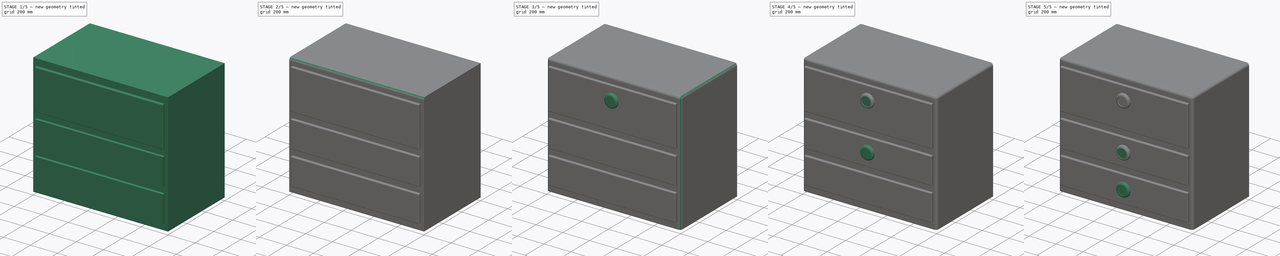
[diagram: build sequence overview — one tinted view per stage of 5, left to right]
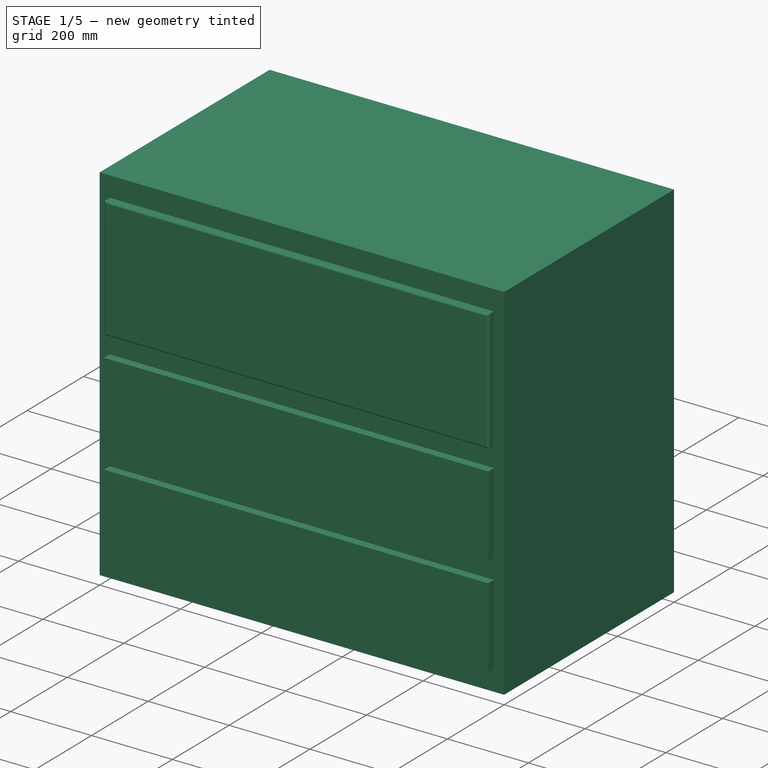
[diagram: stage 1 of 5 — iso view after this stage's code; geometry added in this stage tinted green]
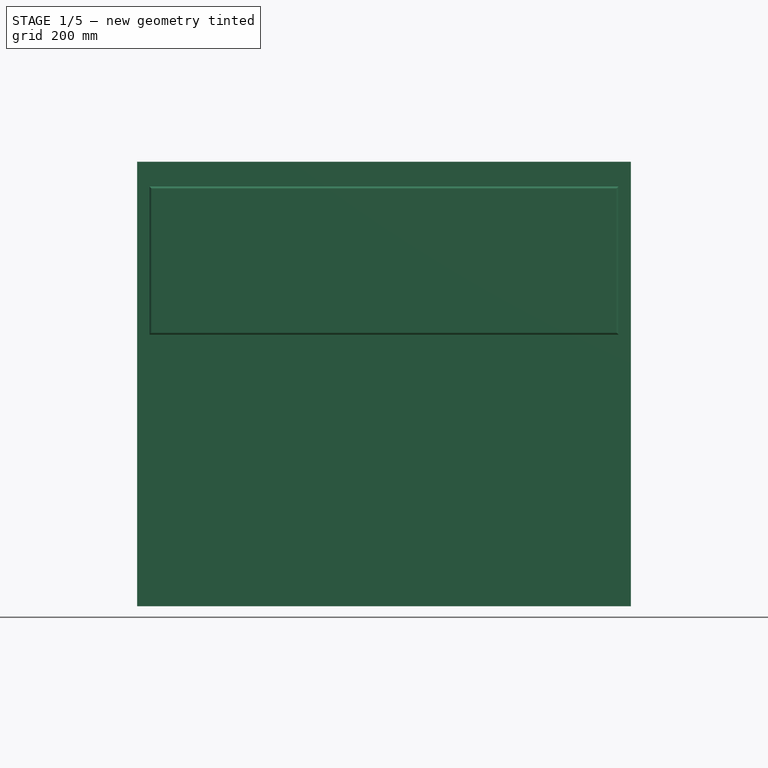
[diagram: stage 1 of 5 — front view after this stage's code; geometry added in this stage tinted green]
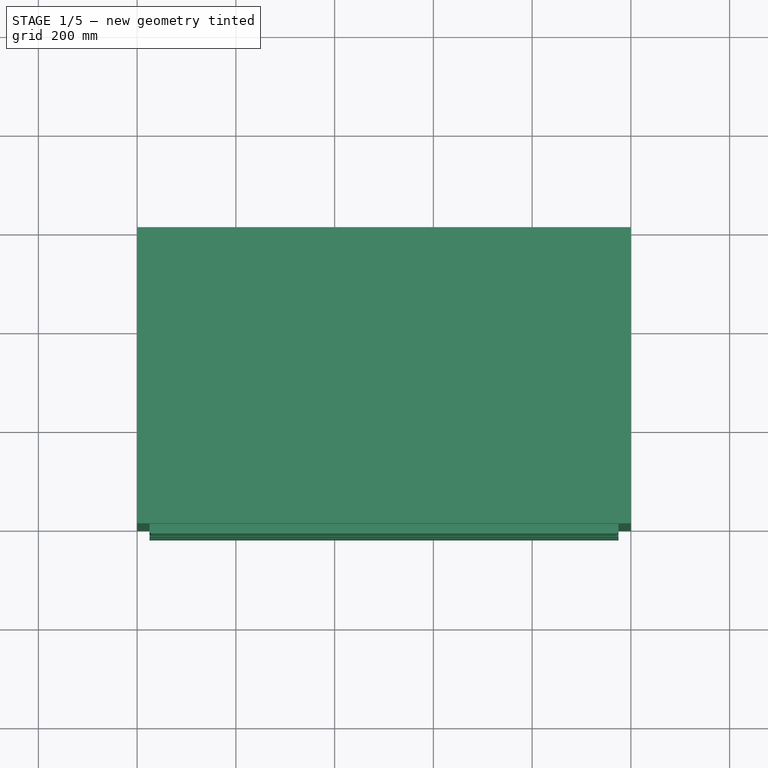
[diagram: stage 1 of 5 — top view after this stage's code; geometry added in this stage tinted green]
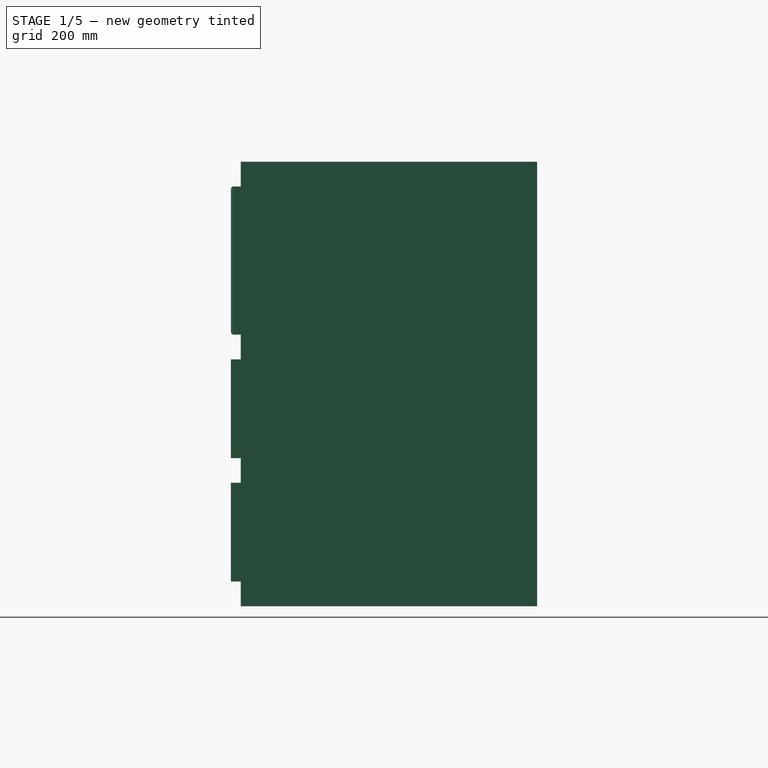
[diagram: stage 1 of 5 — right view after this stage's code; geometry added in this stage tinted green]
FCSTD DOCUMENT  (FreeCAD 0.18R16131 (Git))
Label: GenericDrawers_1000x600x900mm
License: All rights reserved
LicenseURL: http://en.wikipedia.org/wiki/All_rights_reserved
objects: PartDesign::Fillet×9, Sketcher::SketchObject×6, PartDesign::Pad×5, PartDesign::Pocket×4, PartDesign::Body×1
note: 34 computed .brp shape members not serialized (recipe doc carries the construction recipe); baked Part::Feature solids carry a one-line shape summary decoded from their .brp

FEATURE [Sketcher::SketchObject] Sketch
  MapMode = 5
  Support = -> [XY_Plane]
  sketch-geometry (4):
    g0: LineSegment StartX=0 StartY=0 StartZ=0 EndX=1000 EndY=0 EndZ=0
    g1: LineSegment StartX=1000 StartY=0 StartZ=0 EndX=1000 EndY=600 EndZ=0
    g2: LineSegment StartX=1000 StartY=600 StartZ=0 EndX=0 EndY=600 EndZ=0
    g3: LineSegment StartX=0 StartY=600 StartZ=0 EndX=0 EndY=0 EndZ=0
  constraints (11):
    c: Coincident(g0,g1)
    c: Coincident(g1,g2)
    c: Coincident(g2,g3)
    c: Coincident(g3,g0)
    c: Horizontal(g0)
    c: Horizontal(g2)
    c: Vertical(g1)
    c: Vertical(g3)
    c: Coincident(g0,g-1)
    c: DistanceX(g2,g2) = 1000
    c: DistanceY(g3,g3) = 600
FEATURE [PartDesign::Pad] Pad
  Length = 900
  Length2 = 100
  Profile = -> Sketch
  Type = 0
FEATURE [Sketcher::SketchObject] Sketch001
  MapMode = 5
  Placement = pos=(0,600,0) rot=(0,0.707107,0.707107;3.14159rad)
  Support = -> [Pad]
  sketch-geometry (4):
    g0: LineSegment StartX=-975 StartY=875 StartZ=0 EndX=-25 EndY=875 EndZ=0
    g1: LineSegment StartX=-25 StartY=875 StartZ=0 EndX=-25 EndY=25 EndZ=0
    g2: LineSegment StartX=-25 StartY=25 StartZ=0 EndX=-975 EndY=25 EndZ=0
    g3: LineSegment StartX=-975 StartY=25 StartZ=0 EndX=-975 EndY=875 EndZ=0
  constraints (12):
    c: Coincident(g0,g1)
    c: Coincident(g1,g2)
    c: Coincident(g2,g3)
    c: Coincident(g3,g0)
    c: Horizontal(g0)
    c: Horizontal(g2)
    c: Vertical(g1)
    c: Vertical(g3)
    c: DistanceY(g1,g1) = 850
    c: DistanceX(g2,g2) = 950
    c: DistanceX(g1) = -25
    c: DistanceY(g1) = 25
FEATURE [PartDesign::Pocket] Pocket
  BaseFeature = -> Pad
  Length = 25
  Length2 = 100
  Profile = -> Sketch001
  Type = 0
FEATURE [Sketcher::SketchObject] Sketch002
  MapMode = 5
  Placement = pos=(0,0,0) rot=(1,0,0;1.5708rad)
  Support = -> [Pocket]
  sketch-geometry (12):
    g0: LineSegment StartX=25 StartY=50 StartZ=0 EndX=975 EndY=50 EndZ=0
    g1: LineSegment StartX=975 StartY=50 StartZ=0 EndX=975 EndY=250 EndZ=0
    g2: LineSegment StartX=975 StartY=250 StartZ=0 EndX=25 EndY=250 EndZ=0
    g3: LineSegment StartX=25 StartY=250 StartZ=0 EndX=25 EndY=50 EndZ=0
    g4: LineSegment StartX=25 StartY=500 StartZ=0 EndX=975 EndY=500 EndZ=0
    g5: LineSegment StartX=975 StartY=500 StartZ=0 EndX=975 EndY=300 EndZ=0
    g6: LineSegment StartX=975 StartY=300 StartZ=0 EndX=25 EndY=300 EndZ=0
    g7: LineSegment StartX=25 StartY=300 StartZ=0 EndX=25 EndY=500 EndZ=0
    g8: LineSegment StartX=25 StartY=850 StartZ=0 EndX=975 EndY=850 EndZ=0
    g9: LineSegment StartX=975 StartY=850 StartZ=0 EndX=975 EndY=550 EndZ=0
    g10: LineSegment StartX=975 StartY=550 StartZ=0 EndX=25 EndY=550 EndZ=0
    g11: LineSegment StartX=25 StartY=550 StartZ=0 EndX=25 EndY=850 EndZ=0
  constraints (36):
    c: Coincident(g0,g1)
    c: Coincident(g1,g2)
    c: Coincident(g2,g3)
    c: Coincident(g3,g0)
    c: Horizontal(g0)
    c: Horizontal(g2)
    c: Vertical(g1)
    c: Vertical(g3)
    c: DistanceX(g0,g0) = 950
    c: DistanceY(g3,g3) = 200
    c: DistanceY(g0) = 50
    c: DistanceX(g0) = 25
    c: Coincident(g4,g5)
    c: Coincident(g5,g6)
    c: Coincident(g6,g7)
    c: Coincident(g7,g4)
    c: Horizontal(g4)
    c: Horizontal(g6)
    c: Vertical(g5)
    c: Vertical(g7)
    c: DistanceY(g5,g5) = 200
    c: DistanceX(g4,g4) = 950
    c: DistanceX(g6) = 25
    c: DistanceY(g6) = 300
    c: Coincident(g8,g9)
    c: Coincident(g9,g10)
    c: Coincident(g10,g11)
    c: Coincident(g11,g8)
    c: Horizontal(g8)
    c: Horizontal(g10)
    c: Vertical(g9)
    c: Vertical(g11)
    c: DistanceY(g9,g9) = 300
    c: DistanceX(g8,g8) = 950
    c: DistanceX(g10) = 25
    c: DistanceY(g10) = 550
FEATURE [PartDesign::Pad] Pad001
  BaseFeature = -> Pocket
  Length = 20
  Length2 = 100
  Profile = -> Sketch002
  Type = 0
FEATURE [PartDesign::Fillet] Fillet
  Base = -> Pad001 [Face21]
  BaseFeature = -> Pad001
  Radius = 5
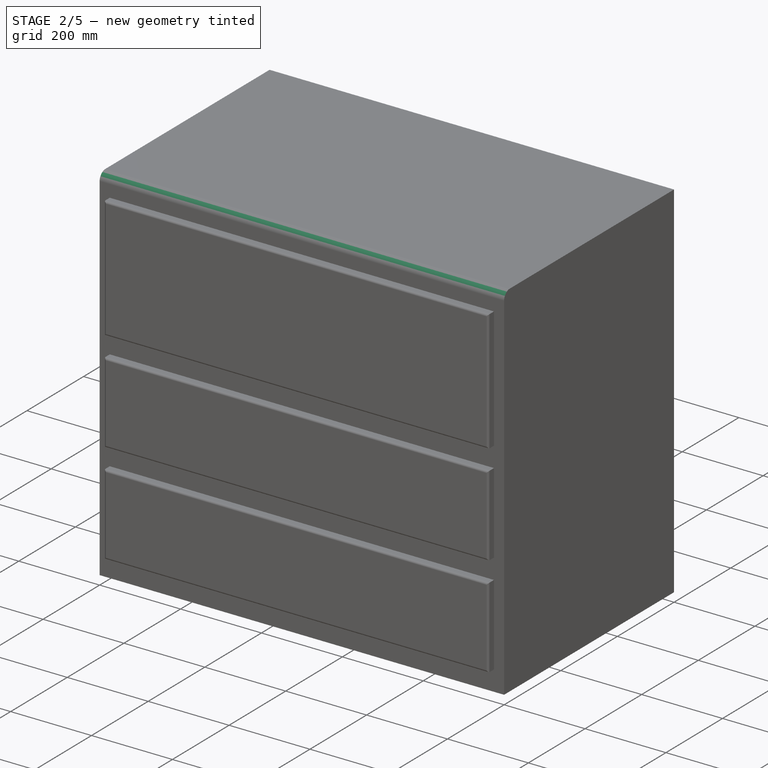
[diagram: stage 2 of 5 — iso view after this stage's code; geometry added in this stage tinted green]
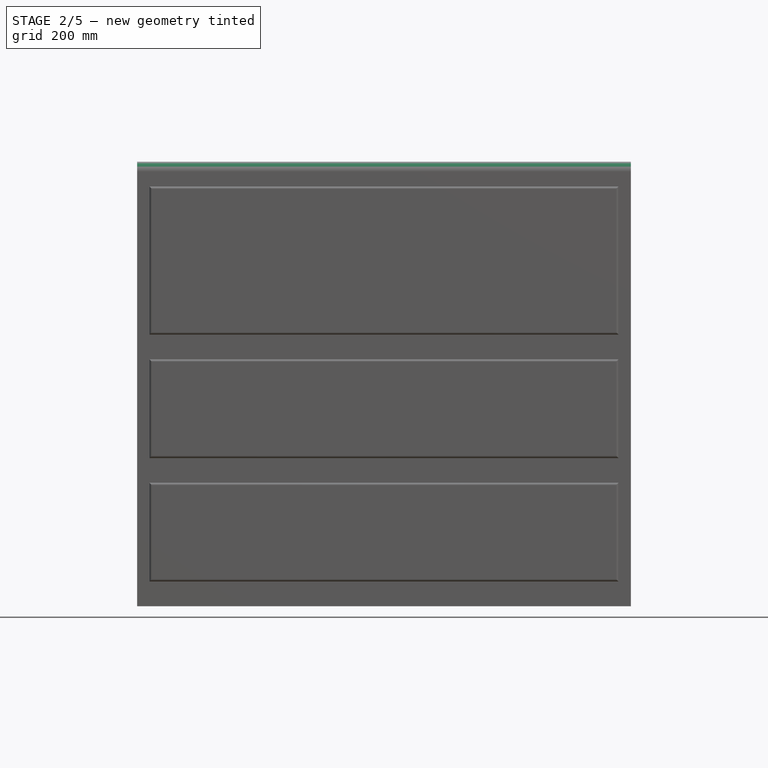
[diagram: stage 2 of 5 — front view after this stage's code; geometry added in this stage tinted green]
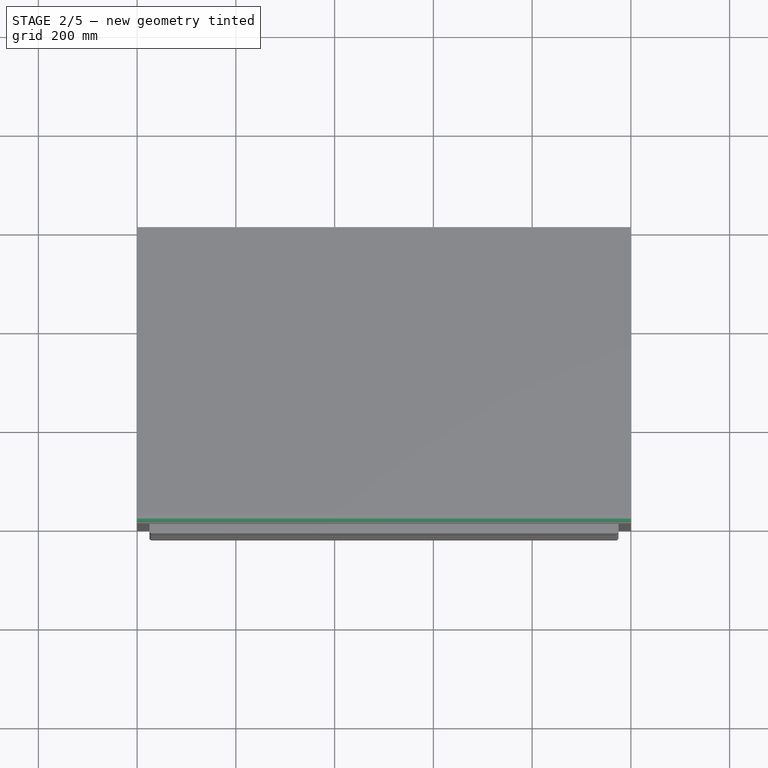
[diagram: stage 2 of 5 — top view after this stage's code; geometry added in this stage tinted green]
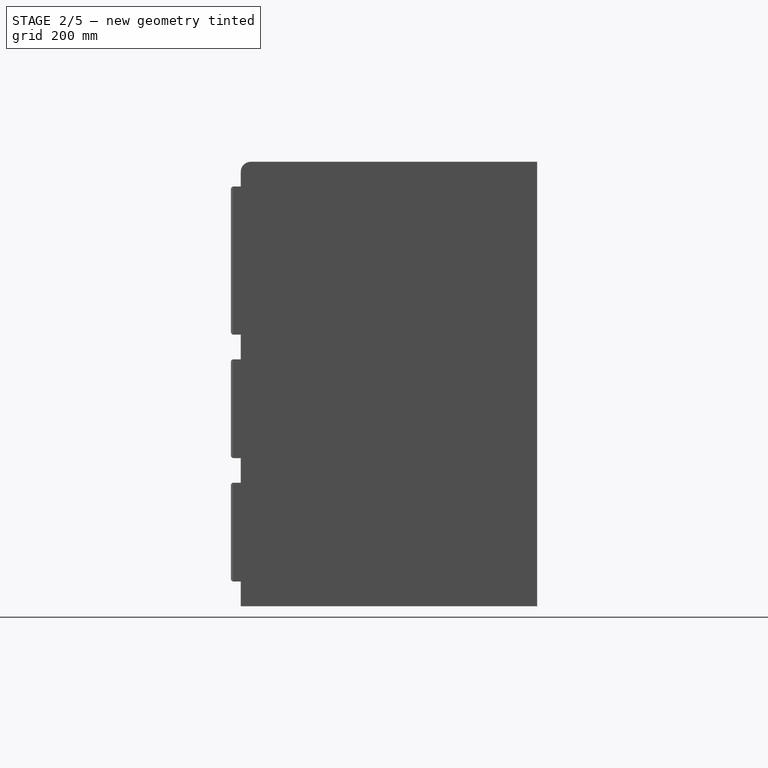
[diagram: stage 2 of 5 — right view after this stage's code; geometry added in this stage tinted green]
FEATURE [PartDesign::Fillet] Fillet001
  Base = -> Fillet [Face25]
  BaseFeature = -> Fillet
  Radius = 5
FEATURE [PartDesign::Fillet] Fillet002
  Base = -> Fillet001 [Face24]
  BaseFeature = -> Fillet001
  Radius = 5
FEATURE [PartDesign::Fillet] Fillet003
  Base = -> Fillet002 [Edge13]
  BaseFeature = -> Fillet002
  Radius = 20
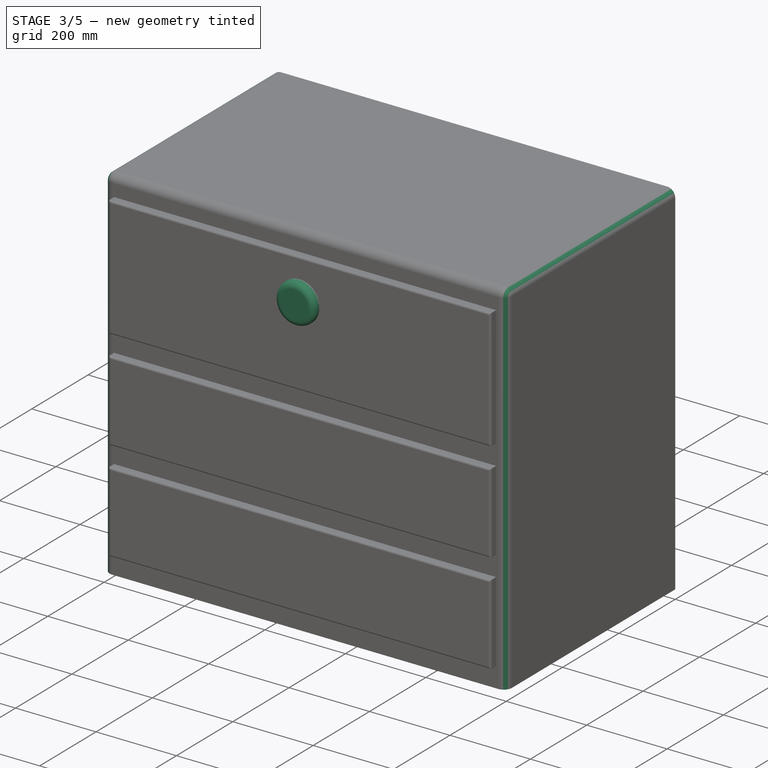
[diagram: stage 3 of 5 — iso view after this stage's code; geometry added in this stage tinted green]
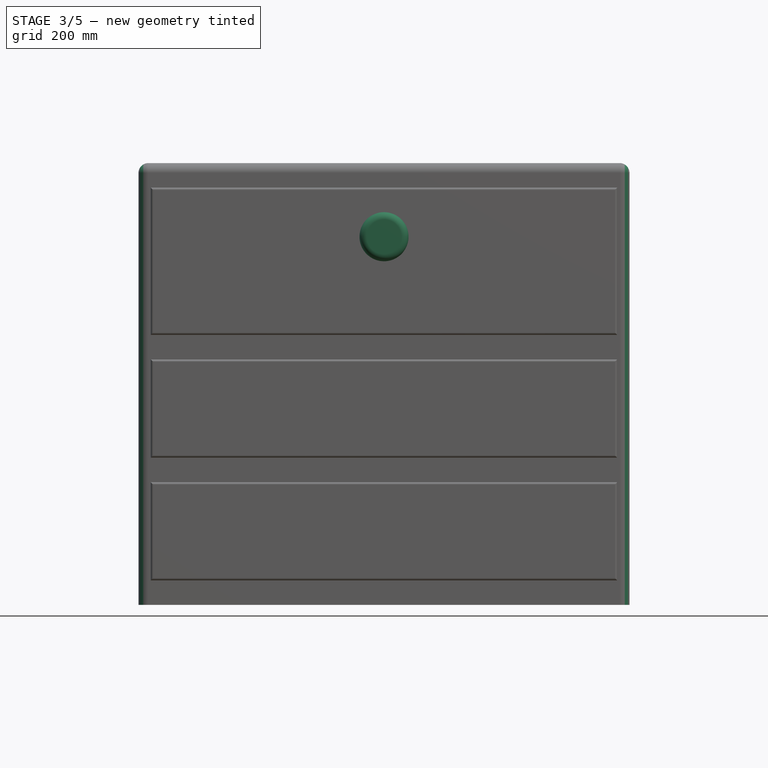
[diagram: stage 3 of 5 — front view after this stage's code; geometry added in this stage tinted green]
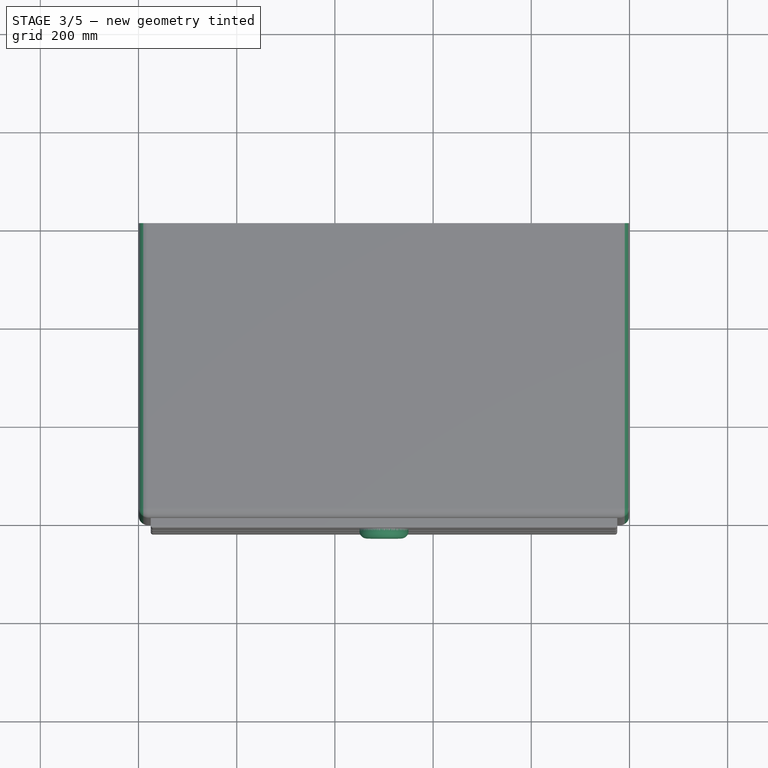
[diagram: stage 3 of 5 — top view after this stage's code; geometry added in this stage tinted green]
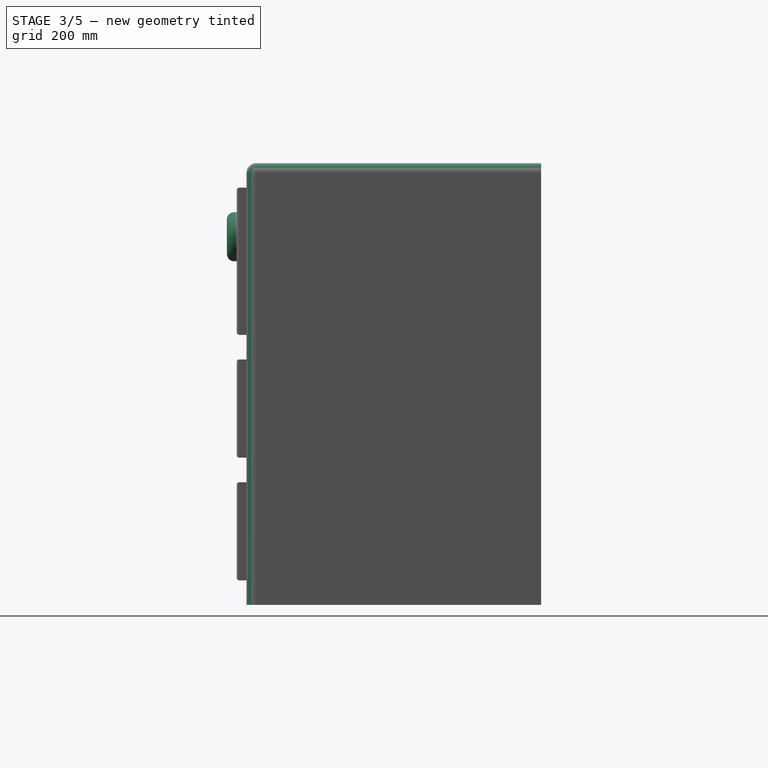
[diagram: stage 3 of 5 — right view after this stage's code; geometry added in this stage tinted green]
FEATURE [PartDesign::Fillet] Fillet004
  Base = -> Fillet003 [Edge19]
  BaseFeature = -> Fillet003
  Radius = 20
FEATURE [PartDesign::Fillet] Fillet005
  Base = -> Fillet004 [Edge24]
  BaseFeature = -> Fillet004
  Radius = 20
FEATURE [Sketcher::SketchObject] Sketch003
  MapMode = 5
  Placement = pos=(0,-20,4.4e-15) rot=(1,0,0;1.5708rad)
  Support = -> [Fillet005]
  sketch-geometry (1):
    g0: Circle CenterX=500 CenterY=750 CenterZ=0 NormalX=0 NormalY=0 NormalZ=1 AngleXU=0 Radius=50
  constraints (3):
    c: Radius(g0) = 50
    c: DistanceX(g0) = 500
    c: DistanceY(g0) = 750
FEATURE [PartDesign::Pad] Pad002
  BaseFeature = -> Fillet005
  Length = 20
  Length2 = 100
  Profile = -> Sketch003
  Type = 0
FEATURE [PartDesign::Fillet] Fillet006
  Base = -> Pad002 [Face47]
  BaseFeature = -> Pad002
  Radius = 15
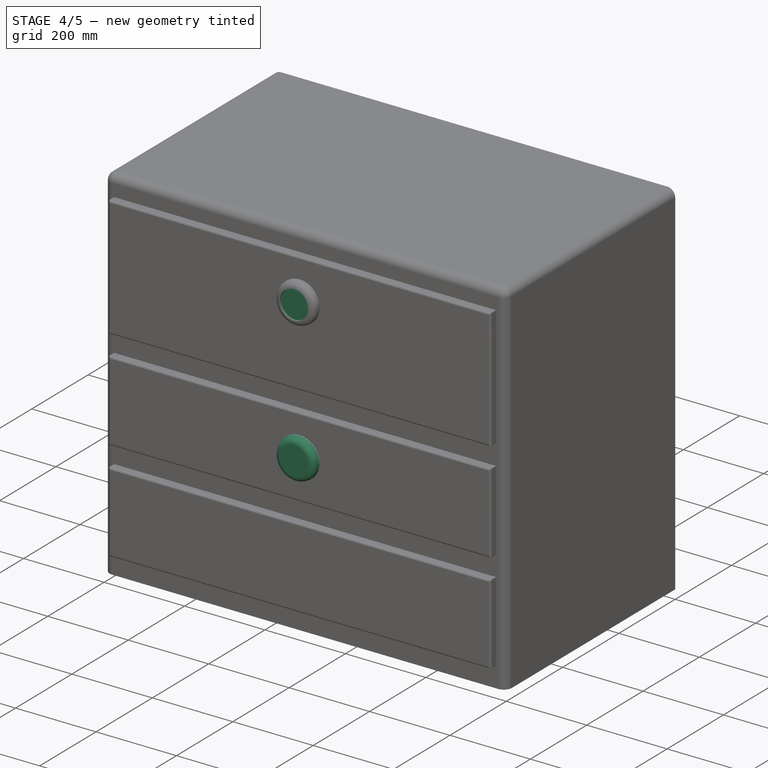
[diagram: stage 4 of 5 — iso view after this stage's code; geometry added in this stage tinted green]
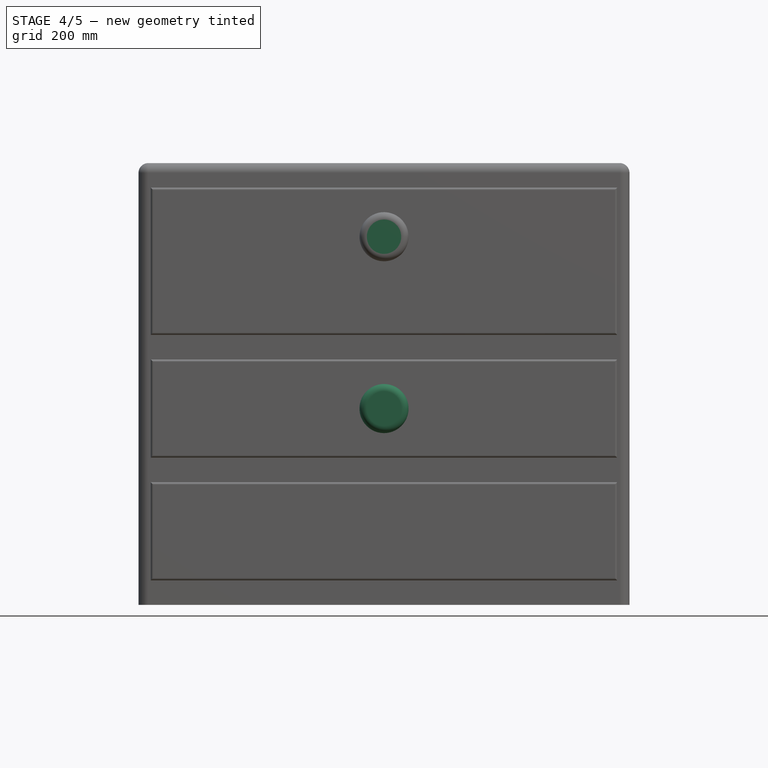
[diagram: stage 4 of 5 — front view after this stage's code; geometry added in this stage tinted green]
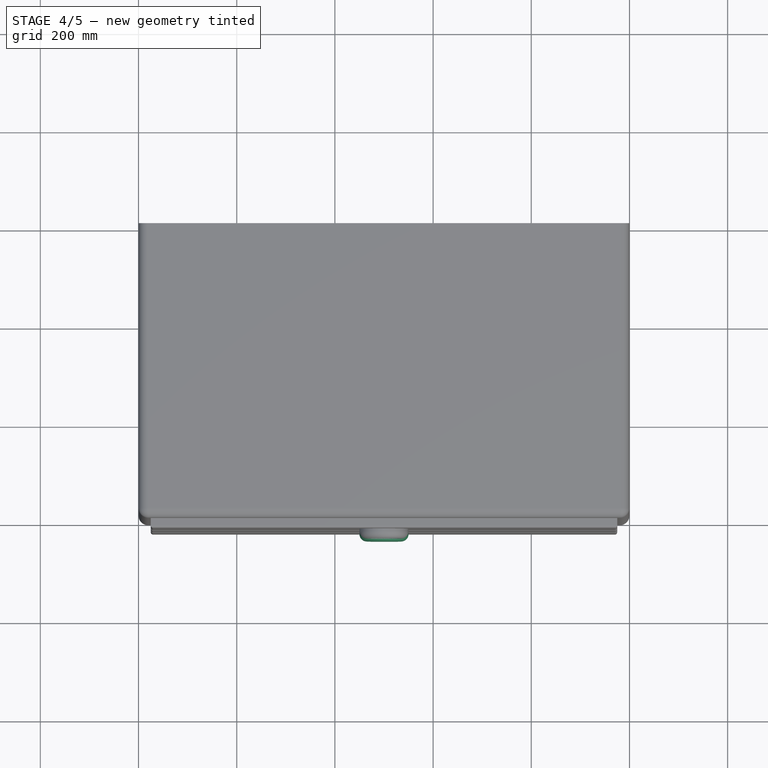
[diagram: stage 4 of 5 — top view after this stage's code; geometry added in this stage tinted green]
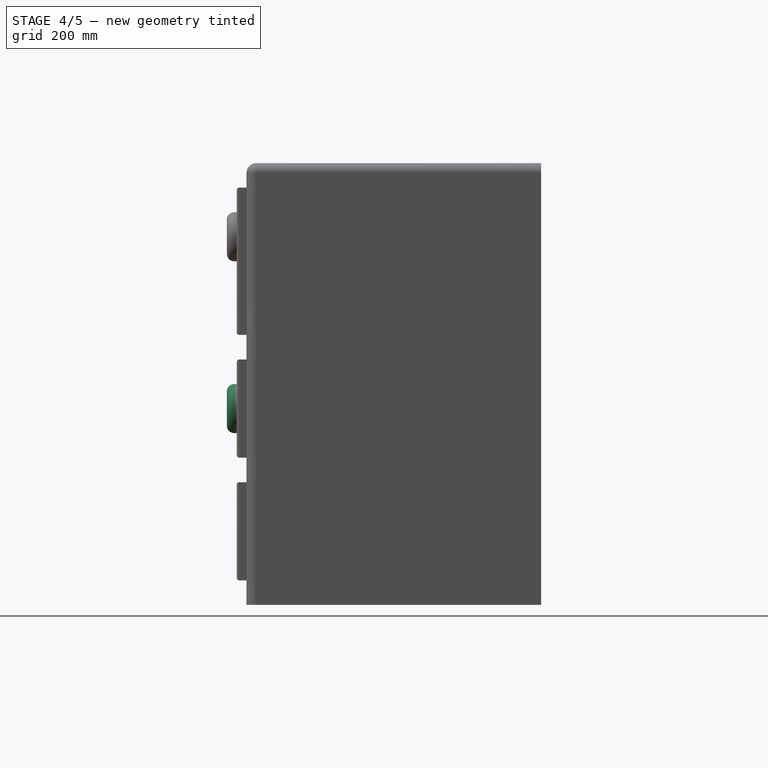
[diagram: stage 4 of 5 — right view after this stage's code; geometry added in this stage tinted green]
FEATURE [PartDesign::Pocket] Pocket001
  BaseFeature = -> Fillet006
  Length = 5
  Length2 = 100
  Profile = -> Fillet006 [Face4]
  Type = 0
FEATURE [Sketcher::SketchObject] Sketch004
  MapMode = 5
  Placement = pos=(0,-20,4.4e-15) rot=(1,0,0;1.5708rad)
  Support = -> [Pocket001]
  sketch-geometry (1):
    g0: Circle CenterX=500 CenterY=400 CenterZ=0 NormalX=0 NormalY=0 NormalZ=1 AngleXU=0 Radius=50
  constraints (3):
    c: Radius(g0) = 50
    c: DistanceX(g0) = 500
    c: DistanceY(g0) = 400
FEATURE [PartDesign::Pad] Pad003
  BaseFeature = -> Pocket001
  Length = 20
  Length2 = 100
  Profile = -> Sketch004
  Type = 0
FEATURE [PartDesign::Fillet] Fillet007
  Base = -> Pad003 [Face51]
  BaseFeature = -> Pad003
  Radius = 15
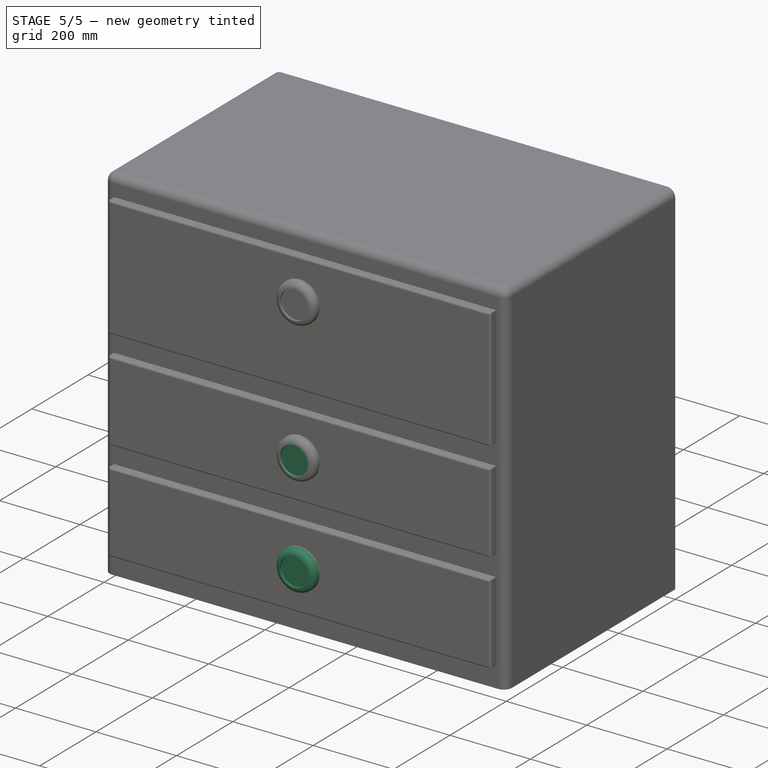
[diagram: stage 5 of 5 — iso view after this stage's code; geometry added in this stage tinted green]
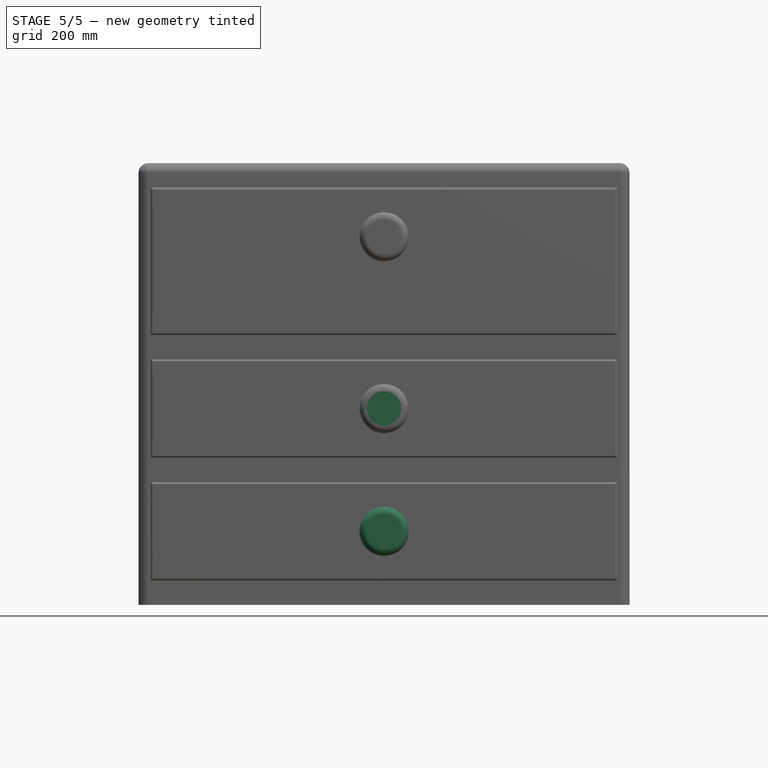
[diagram: stage 5 of 5 — front view after this stage's code; geometry added in this stage tinted green]
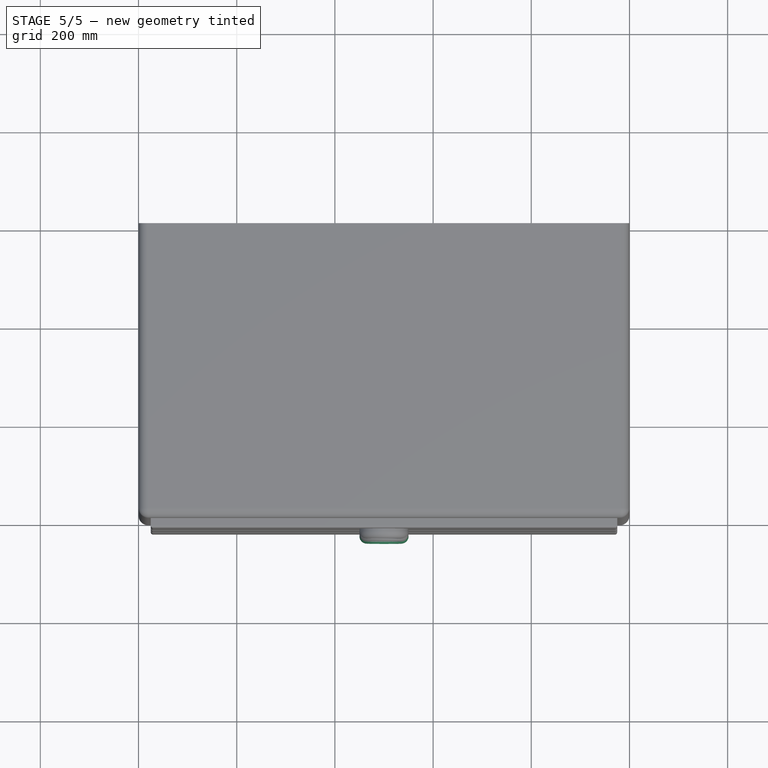
[diagram: stage 5 of 5 — top view after this stage's code; geometry added in this stage tinted green]
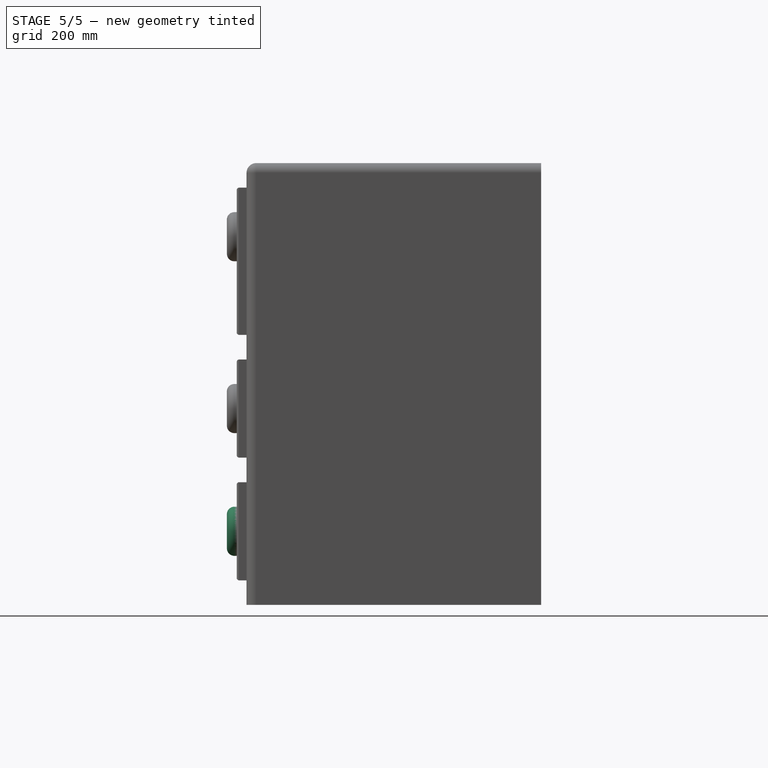
[diagram: stage 5 of 5 — right view after this stage's code; geometry added in this stage tinted green]
FEATURE [PartDesign::Pocket] Pocket002
  BaseFeature = -> Fillet007
  Length = 5
  Length2 = 100
  Profile = -> Fillet007 [Face4]
  Type = 0
FEATURE [Sketcher::SketchObject] Sketch005
  MapMode = 5
  Placement = pos=(0,-20,4.4e-15) rot=(1,0,0;1.5708rad)
  Support = -> [Pocket002]
  sketch-geometry (1):
    g0: Circle CenterX=500 CenterY=150 CenterZ=0 NormalX=0 NormalY=0 NormalZ=1 AngleXU=0 Radius=50
  constraints (3):
    c: Radius(g0) = 50
    c: DistanceX(g0) = 500
    c: DistanceY(g0) = 150
FEATURE [PartDesign::Pad] Pad004
  BaseFeature = -> Pocket002
  Length = 20
  Length2 = 100
  Profile = -> Sketch005
  Type = 0
FEATURE [PartDesign::Fillet] Fillet008
  Base = -> Pad004 [Face52]
  BaseFeature = -> Pad004
  Radius = 15
FEATURE [PartDesign::Pocket] Pocket003
  BaseFeature = -> Fillet008
  Length = 5
  Length2 = 100
  Profile = -> Fillet008 [Face4]
  Type = 0
FEATURE [PartDesign::Body] Body  label="Drawers_1000x600x900mm"
  Group = -> [Sketch,Pad,Sketch001,Pocket,Sketch002,Pad001,Fillet,Fillet001,Fillet002,Fillet003,Fillet004,Fillet005,Sketch003,Pad002,Fillet006,Pocket001,Sketch004,Pad003,Fillet007,Pocket002,Sketch005,Pad004,Fillet008,Pocket003]
  Origin = -> Origin
  Tip = -> Pocket003
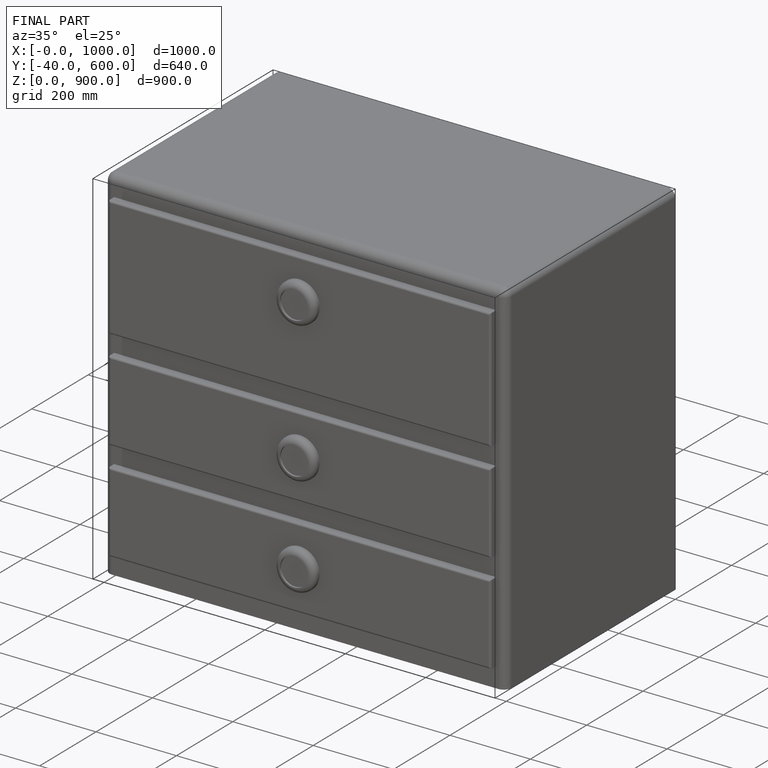
[diagram: finished part — iso view with bounding-box wireframe]
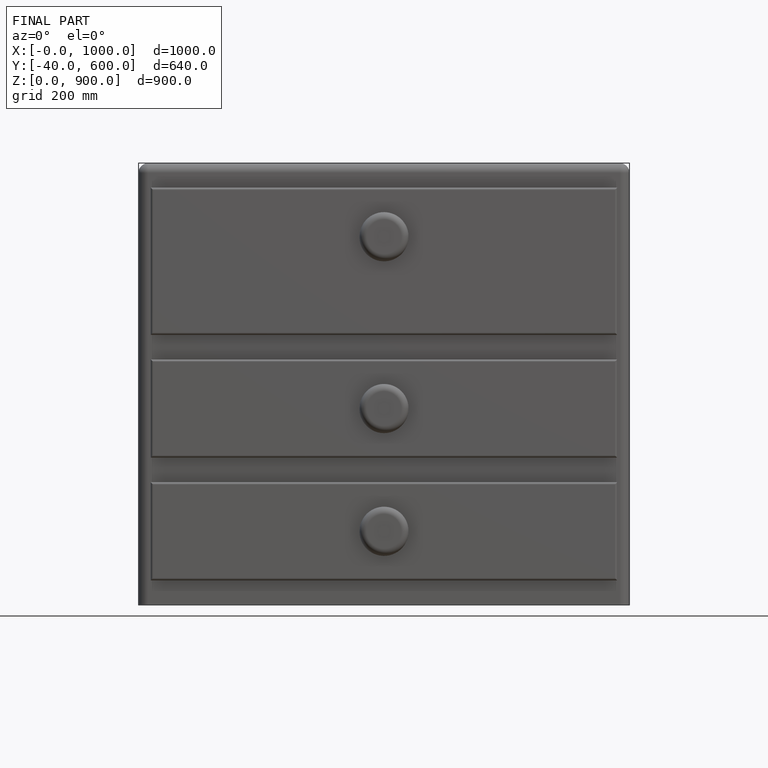
[diagram: finished part — front view with bounding-box wireframe]
